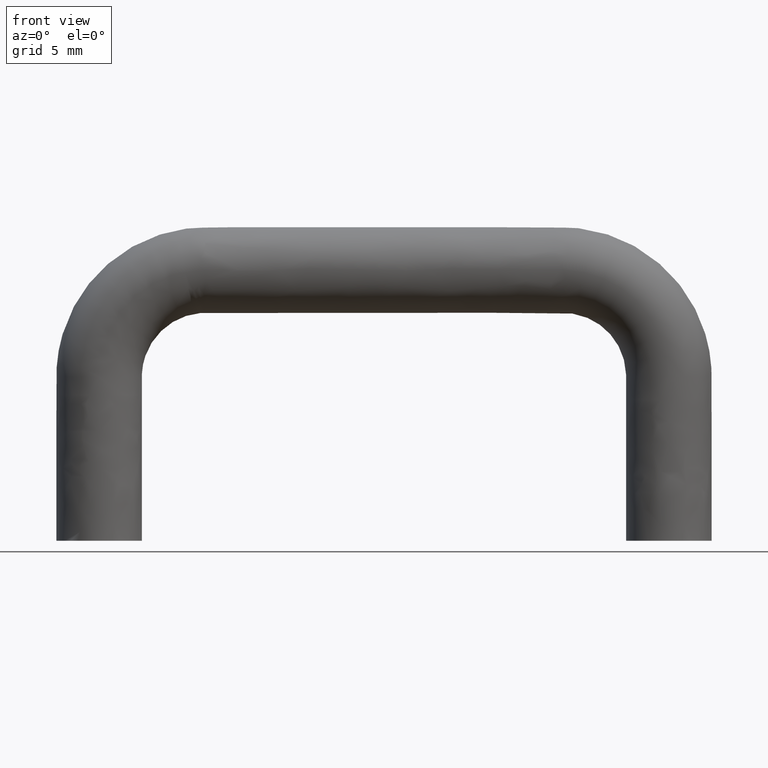
[diagram: clean part render]
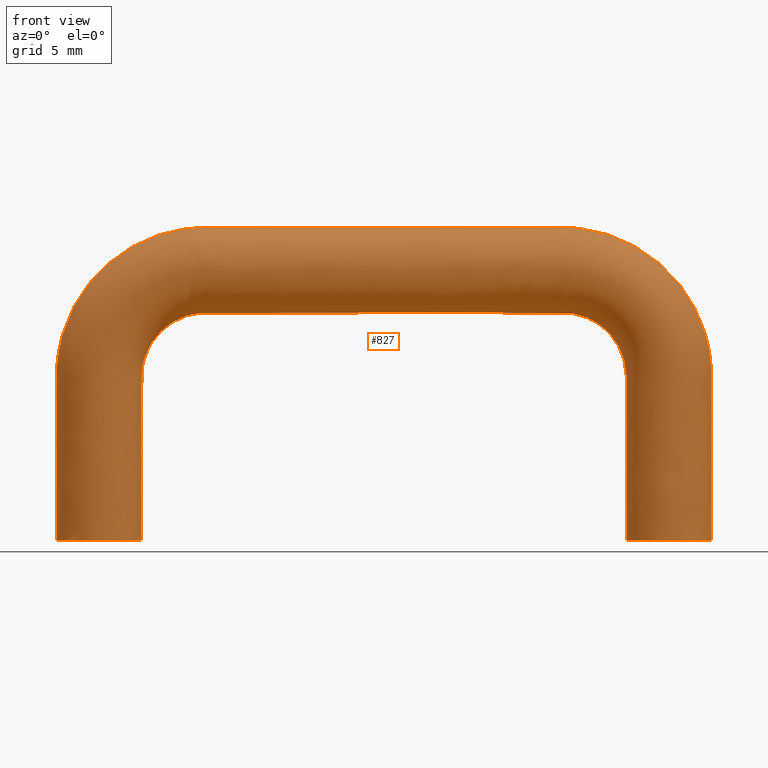
[diagram: same view with one face highlighted and labeled with its STEP entity id]
A machine part, front view. The second image highlights one B-rep face of the part: STEP entity #827.
In plain terms, the highlighted face is a freeform B-spline surface patch.
Its self-contained STEP definition (entity closure, byte-faithful):
#574=CARTESIAN_POINT('',(-3.0,3.673819E-016,0.0));
#575=VERTEX_POINT('',#574);
#576=CARTESIAN_POINT('',(3.0,-3.673819E-016,0.0));
#577=VERTEX_POINT('',#576);
#593=CARTESIAN_POINT('',(43.0,3.673819E-016,1.681514E-014));
#594=VERTEX_POINT('',#593);
#595=CARTESIAN_POINT('',(-3.0,3.673819E-016,0.0));
#596=CARTESIAN_POINT('',(-3.0,3.673819E-016,3.833333333333335));
#597=CARTESIAN_POINT('',(-3.0,3.673819E-016,7.666666666666670));
#598=CARTESIAN_POINT('',(-3.0,3.673819E-016,11.500000000000000));
#599=CARTESIAN_POINT('',(-3.0,3.673819E-016,14.283620580298560));
#600=CARTESIAN_POINT('',(-1.892938191038290,3.673819E-016,16.956304213879200));
#601=CARTESIAN_POINT('',(0.075378797541262,3.673819E-016,18.924621202458749));
#602=CARTESIAN_POINT('',(2.043695786120815,3.673819E-016,20.892938191038301));
#603=CARTESIAN_POINT('',(4.716379419701430,3.673819E-016,22.0));
#604=CARTESIAN_POINT('',(7.500000000000000,3.673819E-016,22.0));
#605=CARTESIAN_POINT('',(15.833333333333350,3.673819E-016,22.0));
#606=CARTESIAN_POINT('',(24.166666666666650,3.673819E-016,22.0));
#607=CARTESIAN_POINT('',(32.500000000000000,3.673819E-016,22.0));
#608=CARTESIAN_POINT('',(38.263455967290547,3.673819E-016,22.0));
#609=CARTESIAN_POINT('',(43.0,3.673819E-016,17.263455967290600));
#610=CARTESIAN_POINT('',(43.0,3.673819E-016,11.500000000000000));
#611=CARTESIAN_POINT('',(43.0,3.673819E-016,7.666666666666680));
#612=CARTESIAN_POINT('',(43.0,3.673819E-016,3.833333333333350));
#613=CARTESIAN_POINT('',(43.0,3.673819E-016,1.681514E-014));
#614=B_SPLINE_CURVE_WITH_KNOTS('',3,(#595,#596,#597,#598,#599,#600,#601,#602,#603,#604,#605,#606,#607,#608,#609,#610,#611,#612,#613),.UNSPECIFIED.,.F.,.U.,(4,3,3,3,3,3,4),(0.0,1.0,2.0,3.0,4.0,5.0,6.0),.UNSPECIFIED.);
#615=EDGE_CURVE('',#575,#594,#614,.T.);
#617=CARTESIAN_POINT('',(37.0,-3.673819E-016,-1.681514E-014));
#618=VERTEX_POINT('',#617);
#634=CARTESIAN_POINT('',(3.0,-7.347638E-016,0.0));
#635=CARTESIAN_POINT('',(3.0,-7.347638E-016,3.833333333333335));
#636=CARTESIAN_POINT('',(3.0,-7.347638E-016,7.666666666666660));
#637=CARTESIAN_POINT('',(3.0,-7.347638E-016,11.500000000000000));
#638=CARTESIAN_POINT('',(3.0,-7.347638E-016,12.694626767294579));
#639=CARTESIAN_POINT('',(3.473290796519585,-7.347638E-016,13.837251827198500));
#640=CARTESIAN_POINT('',(4.318019484660550,-7.347638E-016,14.681980515339440));
#641=CARTESIAN_POINT('',(5.162748172801510,-7.347638E-016,15.526709203480401));
#642=CARTESIAN_POINT('',(6.305373232705421,-7.347638E-016,16.0));
#643=CARTESIAN_POINT('',(7.500000000000000,-7.347638E-016,16.0));
#644=CARTESIAN_POINT('',(15.833333333333350,-7.347638E-016,16.0));
#645=CARTESIAN_POINT('',(24.166666666666650,-7.347638E-016,16.0));
#646=CARTESIAN_POINT('',(32.500000000000000,-7.347638E-016,16.0));
#647=CARTESIAN_POINT('',(35.020815280171298,-7.347638E-016,16.0));
#648=CARTESIAN_POINT('',(37.0,-7.347638E-016,14.020815280171300));
#649=CARTESIAN_POINT('',(37.0,-7.347638E-016,11.500000000000000));
#650=CARTESIAN_POINT('',(37.0,-7.347638E-016,7.666666666666660));
#651=CARTESIAN_POINT('',(37.0,-7.347638E-016,3.833333333333320));
#652=CARTESIAN_POINT('',(37.0,-7.347638E-016,-1.681514E-014));
#653=B_SPLINE_CURVE_WITH_KNOTS('',3,(#634,#635,#636,#637,#638,#639,#640,#641,#642,#643,#644,#645,#646,#647,#648,#649,#650,#651,#652),.UNSPECIFIED.,.F.,.U.,(4,3,3,3,3,3,4),(0.0,1.0,2.0,3.0,4.0,5.0,6.0),.UNSPECIFIED.);
#654=EDGE_CURVE('',#577,#618,#653,.T.);
#659=CARTESIAN_POINT('',(3.0,0.042179325686164,-0.381861436358178));
#660=CARTESIAN_POINT('',(3.0,0.021151252642467,-0.381861436358178));
#661=CARTESIAN_POINT('',(3.000000000000001,-3.000000000000001,-0.381861436358178));
#662=CARTESIAN_POINT('',(-5.510934E-016,-3.0,-0.381861436358178));
#663=CARTESIAN_POINT('',(-3.000000000000001,-3.000000000000001,-0.381861436358178));
#664=CARTESIAN_POINT('',(-3.000000000000000,0.021151305352537,-0.381861436358178));
#665=CARTESIAN_POINT('',(-2.999999999999998,0.042179430493255,-0.381861436358178));
#666=CARTESIAN_POINT('',(3.0,0.042179325686164,3.584546247387514));
#667=CARTESIAN_POINT('',(2.999999999999999,0.021151252642467,3.584546247387515));
#668=CARTESIAN_POINT('',(3.000000000000001,-3.000000000000001,3.584546247387515));
#669=CARTESIAN_POINT('',(-5.417080E-016,-3.0,3.584546247387514));
#670=CARTESIAN_POINT('',(-3.000000000000001,-3.000000000000001,3.584546247387515));
#671=CARTESIAN_POINT('',(-3.0,0.021151305352537,3.584546247387514));
#672=CARTESIAN_POINT('',(-2.999999999999998,0.042179430493255,3.584546247387511));
#673=CARTESIAN_POINT('',(3.0,0.042179325686164,7.542273123693749));
#674=CARTESIAN_POINT('',(3.000000000000001,0.021151252642467,7.542273123693748));
#675=CARTESIAN_POINT('',(3.000000000000001,-3.000000000000001,7.542273123693744));
#676=CARTESIAN_POINT('',(-8.399663E-016,-3.0,7.542273123693758));
#677=CARTESIAN_POINT('',(-3.000000000000001,-3.000000000000001,7.542273123693759));
#678=CARTESIAN_POINT('',(-3.0,0.021151305352537,7.542273123693760));
#679=CARTESIAN_POINT('',(-2.999999999999998,0.042179430493255,7.542273123693754));
#680=CARTESIAN_POINT('',(3.0,0.042179325686164,11.499999999999998));
#681=CARTESIAN_POINT('',(3.0,0.021151252642467,11.500000000000005));
#682=CARTESIAN_POINT('',(3.000000000000008,-3.000000000000001,11.499999999999982));
#683=CARTESIAN_POINT('',(8.351528E-015,-3.0,11.500000000000000));
#684=CARTESIAN_POINT('',(-2.999999999999987,-3.000000000000001,11.499999999999995));
#685=CARTESIAN_POINT('',(-3.000000000000000,0.021151305352537,11.500000000000000));
#686=CARTESIAN_POINT('',(-2.999999999999999,0.042179430493255,11.500000000000000));
#687=CARTESIAN_POINT('',(3.0,0.042179325686164,12.694626767294581));
#688=CARTESIAN_POINT('',(3.000000000000001,0.021151252642467,12.694626767294581));
#689=CARTESIAN_POINT('',(3.000000000000014,-3.000000000000001,12.694626767294574));
#690=CARTESIAN_POINT('',(1.669877E-014,-3.0,13.489123673796581));
#691=CARTESIAN_POINT('',(-2.999999999999980,-3.000000000000001,14.283620580298548));
#692=CARTESIAN_POINT('',(-3.0,0.021151305352537,14.283620580298562));
#693=CARTESIAN_POINT('',(-2.999999999999999,0.042179430493255,14.283620580298560));
#694=CARTESIAN_POINT('',(3.473290796519585,0.042179325686164,13.837251827198502));
#695=CARTESIAN_POINT('',(3.473290796519585,0.021151252642467,13.837251827198500));
#696=CARTESIAN_POINT('',(3.473290796519585,-3.000000000000001,13.837251827198488));
#697=CARTESIAN_POINT('',(0.790176302740648,-3.0,15.396778020538850));
#698=CARTESIAN_POINT('',(-1.892938191038287,-3.000000000000001,16.956304213879182));
#699=CARTESIAN_POINT('',(-1.892938191038291,0.021151305352537,16.956304213879200));
#700=CARTESIAN_POINT('',(-1.892938191038289,0.042179430493255,16.956304213879193));
#701=CARTESIAN_POINT('',(5.162748172801511,0.042179325686164,15.526709203480394));
#702=CARTESIAN_POINT('',(5.162748172801511,0.021151252642467,15.526709203480392));
#703=CARTESIAN_POINT('',(5.162748172801506,-3.000000000000001,15.526709203480406));
#704=CARTESIAN_POINT('',(3.603221979461160,-3.0,18.209823697259349));
#705=CARTESIAN_POINT('',(2.043695786120813,-3.000000000000001,20.892938191038269));
#706=CARTESIAN_POINT('',(2.043695786120815,0.021151305352537,20.892938191038308));
#707=CARTESIAN_POINT('',(2.043695786120814,0.042179430493255,20.892938191038301));
#708=CARTESIAN_POINT('',(6.305373232705421,0.042179325686164,16.0));
#709=CARTESIAN_POINT('',(6.305373232705420,0.021151252642467,16.0));
#710=CARTESIAN_POINT('',(6.305373232705416,-3.000000000000001,15.999999999999959));
#711=CARTESIAN_POINT('',(5.510876326203420,-3.0,19.0));
#712=CARTESIAN_POINT('',(4.716379419701426,-3.000000000000001,21.999999999999993));
#713=CARTESIAN_POINT('',(4.716379419701431,0.021151305352537,22.000000000000007));
#714=CARTESIAN_POINT('',(4.716379419701427,0.042179430493255,21.999999999999993));
#715=CARTESIAN_POINT('',(7.500000000000000,0.042179325686164,16.0));
#716=CARTESIAN_POINT('',(7.499999999999999,0.021151252642467,16.0));
#717=CARTESIAN_POINT('',(7.499999999999999,-3.000000000000001,15.999999999999959));
#718=CARTESIAN_POINT('',(7.500000000000000,-3.0,19.0));
#719=CARTESIAN_POINT('',(7.499999999999999,-3.000000000000001,21.999999999999993));
#720=CARTESIAN_POINT('',(7.500000000000002,0.021151305352537,22.000000000000007));
#721=CARTESIAN_POINT('',(7.499999999999996,0.042179430493255,21.999999999999993));
#722=CARTESIAN_POINT('',(15.833333333333355,0.042179325686164,16.0));
#723=CARTESIAN_POINT('',(15.833333333333348,0.021151252642467,16.0));
#724=CARTESIAN_POINT('',(15.833333333333318,-3.000000000000001,15.999999999999959));
#725=CARTESIAN_POINT('',(15.833333333333350,-3.0,19.0));
#726=CARTESIAN_POINT('',(15.833333333333318,-3.000000000000001,21.999999999999993));
#727=CARTESIAN_POINT('',(15.833333333333353,0.021151305352537,22.000000000000007));
#728=CARTESIAN_POINT('',(15.833333333333345,0.042179430493255,21.999999999999993));
#729=CARTESIAN_POINT('',(24.166666666666650,0.042179325686164,16.0));
#730=CARTESIAN_POINT('',(24.166666666666650,0.021151252642467,16.0));
#731=CARTESIAN_POINT('',(24.166666666666650,-3.000000000000001,15.999999999999959));
#732=CARTESIAN_POINT('',(24.166666666666650,-3.0,19.0));
#733=CARTESIAN_POINT('',(24.166666666666650,-3.000000000000001,21.999999999999993));
#734=CARTESIAN_POINT('',(24.166666666666664,0.021151305352537,22.000000000000007));
#735=CARTESIAN_POINT('',(24.166666666666643,0.042179430493255,21.999999999999993));
#736=CARTESIAN_POINT('',(32.499999999999993,0.042179325686164,16.0));
#737=CARTESIAN_POINT('',(32.500000000000000,0.021151252642467,16.0));
#738=CARTESIAN_POINT('',(32.499999999999986,-3.000000000000001,15.999999999999959));
#739=CARTESIAN_POINT('',(32.500000000000000,-3.0,19.0));
#740=CARTESIAN_POINT('',(32.499999999999986,-3.000000000000001,21.999999999999993));
#741=CARTESIAN_POINT('',(32.500000000000007,0.021151305352537,22.000000000000007));
#742=CARTESIAN_POINT('',(32.499999999999986,0.042179430493255,21.999999999999993));
#743=CARTESIAN_POINT('',(35.020815280171306,0.042179325686164,16.0));
#744=CARTESIAN_POINT('',(35.020815280171298,0.021151252642467,16.0));
#745=CARTESIAN_POINT('',(35.020815280171291,-3.000000000000001,15.999999999999959));
#746=CARTESIAN_POINT('',(36.642135623730951,-3.0,19.0));
#747=CARTESIAN_POINT('',(38.263455967290575,-3.000000000000001,21.999999999999993));
#748=CARTESIAN_POINT('',(38.263455967290561,0.021151305352537,22.000000000000007));
#749=CARTESIAN_POINT('',(38.263455967290518,0.042179430493255,21.999999999999993));
#750=CARTESIAN_POINT('',(37.0,0.042179325686164,14.020815280171302));
#751=CARTESIAN_POINT('',(37.0,0.021151252642467,14.020815280171302));
#752=CARTESIAN_POINT('',(36.999999999999964,-3.000000000000001,14.020815280171290));
#753=CARTESIAN_POINT('',(40.0,-3.0,15.642135623730949));
#754=CARTESIAN_POINT('',(42.999999999999908,-3.000000000000001,17.263455967290572));
#755=CARTESIAN_POINT('',(43.000000000000007,0.021151305352537,17.263455967290607));
#756=CARTESIAN_POINT('',(42.999999999999986,0.042179430493255,17.263455967290597));
#757=CARTESIAN_POINT('',(37.0,0.042179325686164,11.499999999999998));
#758=CARTESIAN_POINT('',(37.0,0.021151252642467,11.500000000000005));
#759=CARTESIAN_POINT('',(36.999999999999964,-3.000000000000001,11.499999999999982));
#760=CARTESIAN_POINT('',(40.0,-3.0,11.500000000000000));
#761=CARTESIAN_POINT('',(42.999999999999993,-3.000000000000001,11.499999999999995));
#762=CARTESIAN_POINT('',(43.000000000000007,0.021151305352537,11.500000000000000));
#763=CARTESIAN_POINT('',(42.999999999999986,0.042179430493255,11.500000000000000));
#764=CARTESIAN_POINT('',(37.000000000000021,0.042179325686164,6.517807831197544));
#765=CARTESIAN_POINT('',(37.000000000000007,0.021151252642467,6.517807831197546));
#766=CARTESIAN_POINT('',(36.999999999999979,-3.000000000000003,6.517807831197546));
#767=CARTESIAN_POINT('',(40.0,-3.0,6.517807831197557));
#768=CARTESIAN_POINT('',(42.999999999999993,-3.000000000000003,6.517807831197559));
#769=CARTESIAN_POINT('',(43.000000000000007,0.021151305352537,6.517807831197573));
#770=CARTESIAN_POINT('',(43.0,0.042179430493255,6.517807831197566));
#771=CARTESIAN_POINT('',(37.000000000000021,0.042179325686164,1.535615662395091));
#772=CARTESIAN_POINT('',(37.000000000000021,0.021151252642467,1.535615662395091));
#773=CARTESIAN_POINT('',(36.999999999999979,-3.000000000000001,1.535615662395090));
#774=CARTESIAN_POINT('',(40.0,-3.0,1.535615662395107));
#775=CARTESIAN_POINT('',(42.999999999999993,-3.000000000000001,1.535615662395127));
#776=CARTESIAN_POINT('',(43.000000000000007,0.021151305352537,1.535615662395124));
#777=CARTESIAN_POINT('',(42.999999999999964,0.042179430493255,1.535615662395124));
#778=CARTESIAN_POINT('',(37.0,0.042179325686164,-3.446576506407361));
#779=CARTESIAN_POINT('',(37.0,0.021151252642467,-3.446576506407360));
#780=CARTESIAN_POINT('',(36.999999999999979,-3.000000000000001,-3.446576506407361));
#781=CARTESIAN_POINT('',(40.0,-3.0,-3.446576506407343));
#782=CARTESIAN_POINT('',(42.999999999999993,-3.000000000000001,-3.446576506407321));
#783=CARTESIAN_POINT('',(43.000000000000007,0.021151305352537,-3.446576506407324));
#784=CARTESIAN_POINT('',(42.999999999999964,0.042179430493255,-3.446576506407321));
#792=(BOUNDED_SURFACE()B_SPLINE_SURFACE(2,3,((#659,#666,#673,#680,#687,#694,#701,#708,#715,#722,#729,#736,#743,#750,#757,#764,#771,#778),(#660,#667,#674,#681,#688,#695,#702,#709,#716,#723,#730,#737,#744,#751,#758,#765,#772,#779),(#661,#668,#675,#682,#689,#696,#703,#710,#717,#724,#731,#738,#745,#752,#759,#766,#773,#780),(#662,#669,#676,#683,#690,#697,#704,#711,#718,#725,#732,#739,#746,#753,#760,#767,#774,#781),(#663,#670,#677,#684,#691,#698,#705,#712,#719,#726,#733,#740,#747,#754,#761,#768,#775,#782),(#664,#671,#678,#685,#692,#699,#706,#713,#720,#727,#734,#741,#748,#755,#762,#769,#776,#783),(#665,#672,#679,#686,#693,#700,#707,#714,#721,#728,#735,#742,#749,#756,#763,#770,#777,#784)),.UNSPECIFIED.,.F.,.F.,.U.)B_SPLINE_SURFACE_WITH_KNOTS((3,1,2,1,3),(4,3,2,3,3,3,4),(0.0,0.049705626994924,5.020268375472074,9.990831123949224,10.040536875176070),(0.0,25.830133557319702,50.830133557319762,75.830133557319812,100.830133557319900,125.830133557319900,158.322691179944710),.UNSPECIFIED.)GEOMETRIC_REPRESENTATION_ITEM()RATIONAL_B_SPLINE_SURFACE(((1.005857864318540,1.005857864318540,1.005857864318540,1.005857864318540,1.005857864318540,1.005857864318540,1.005857864318540,1.005857864318540,1.005857864318540,1.005857864318540,1.005857864318540,1.005857864318540,1.005857864318540,1.005857864318540,1.005857864318540,1.005857864318540,1.005857864318540,1.005857864318540),(1.002928932159270,1.002928932159270,1.002928932159270,1.002928932159270,1.002928932159270,1.002928932159270,1.002928932159270,1.002928932159270,1.002928932159270,1.002928932159270,1.002928932159270,1.002928932159270,1.002928932159270,1.002928932159270,1.002928932159270,1.002928932159270,1.002928932159270,1.002928932159270),(0.707106781186548,0.707106781186548,0.707106781186548,0.707106781186548,0.707106781186548,0.707106781186548,0.707106781186548,0.707106781186548,0.707106781186548,0.707106781186548,0.707106781186548,0.707106781186548,0.707106781186548,0.707106781186548,0.707106781186548,0.707106781186548,0.707106781186548,0.707106781186548),(1.0,1.0,1.0,1.0,1.0,1.0,1.0,1.0,1.0,1.0,1.0,1.0,1.0,1.0,1.0,1.0,1.0,1.0),(0.707106781186548,0.707106781186548,0.707106781186548,0.707106781186548,0.707106781186548,0.707106781186548,0.707106781186548,0.707106781186548,0.707106781186548,0.707106781186548,0.707106781186548,0.707106781186548,0.707106781186548,0.707106781186548,0.707106781186548,0.707106781186548,0.707106781186548,0.707106781186548),(1.002928939479706,1.002928939479706,1.002928939479706,1.002928939479706,1.002928939479706,1.002928939479706,1.002928939479706,1.002928939479706,1.002928939479706,1.002928939479706,1.002928939479706,1.002928939479706,1.002928939479706,1.002928939479706,1.002928939479706,1.002928939479706,1.002928939479706,1.002928939479706),(1.005857878959413,1.005857878959413,1.005857878959413,1.005857878959413,1.005857878959413,1.005857878959413,1.005857878959413,1.005857878959413,1.005857878959413,1.005857878959413,1.005857878959413,1.005857878959413,1.005857878959413,1.005857878959413,1.005857878959413,1.005857878959413,1.005857878959413,1.005857878959413)))REPRESENTATION_ITEM('')SURFACE());
#793=CARTESIAN_POINT('',(3.0,-3.673819E-016,0.0));
#794=CARTESIAN_POINT('',(2.999999999999999,-3.0,0.0));
#795=CARTESIAN_POINT('',(-4.923769E-016,-3.0,0.0));
#796=CARTESIAN_POINT('',(-3.0,-3.0,0.0));
#797=CARTESIAN_POINT('',(-3.0,-3.673819E-016,0.0));
#805=(BOUNDED_CURVE()B_SPLINE_CURVE(2,(#793,#794,#795,#796,#797),.UNSPECIFIED.,.F.,.U.)B_SPLINE_CURVE_WITH_KNOTS((3,2,3),(0.0,0.500000000000000,1.0),.UNSPECIFIED.)CURVE()GEOMETRIC_REPRESENTATION_ITEM()RATIONAL_B_SPLINE_CURVE((1.0,0.707106781186548,1.0,0.707106781186548,1.0))REPRESENTATION_ITEM(''));
#806=EDGE_CURVE('',#577,#575,#805,.T.);
#807=ORIENTED_EDGE('',*,*,#806,.F.);
#808=ORIENTED_EDGE('',*,*,#654,.T.);
#809=CARTESIAN_POINT('',(37.0,-8.010628E-016,-1.133057E-028));
#810=CARTESIAN_POINT('',(37.0,-3.0,-1.133057E-028));
#811=CARTESIAN_POINT('',(40.0,-3.000000000000001,-1.133057E-028));
#812=CARTESIAN_POINT('',(42.999999999999993,-3.0,-1.133057E-028));
#813=CARTESIAN_POINT('',(43.0,-8.010628E-016,-1.133057E-028));
#821=(BOUNDED_CURVE()B_SPLINE_CURVE(2,(#809,#810,#811,#812,#813),.UNSPECIFIED.,.F.,.U.)B_SPLINE_CURVE_WITH_KNOTS((3,2,3),(0.0,0.500000000000000,1.0),.UNSPECIFIED.)CURVE()GEOMETRIC_REPRESENTATION_ITEM()RATIONAL_B_SPLINE_CURVE((1.0,0.707106781186548,1.0,0.707106781186548,1.0))REPRESENTATION_ITEM(''));
#822=EDGE_CURVE('',#618,#594,#821,.T.);
#823=ORIENTED_EDGE('',*,*,#822,.T.);
#824=ORIENTED_EDGE('',*,*,#615,.F.);
#825=EDGE_LOOP('',(#807,#808,#823,#824));
#826=FACE_OUTER_BOUND('',#825,.T.);
#827=ADVANCED_FACE('',(#826),#792,.F.);